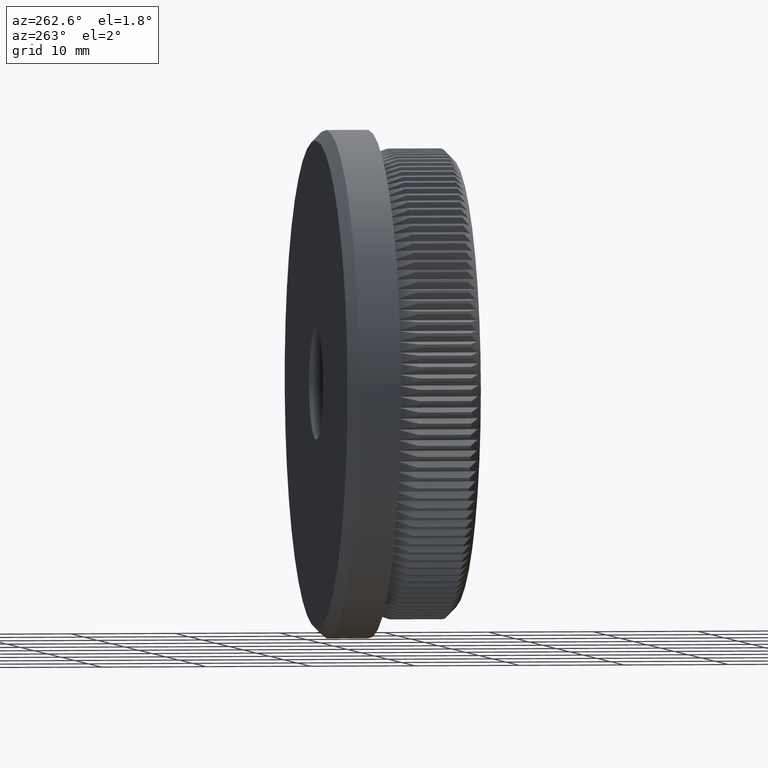
[diagram: clean part render]
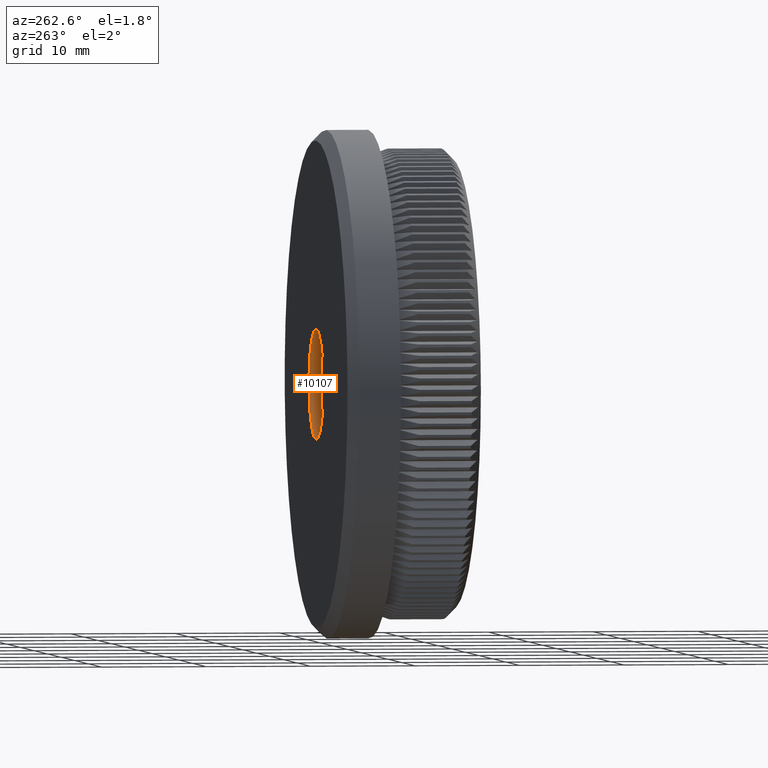
[diagram: same view with one face highlighted and labeled with its STEP entity id]
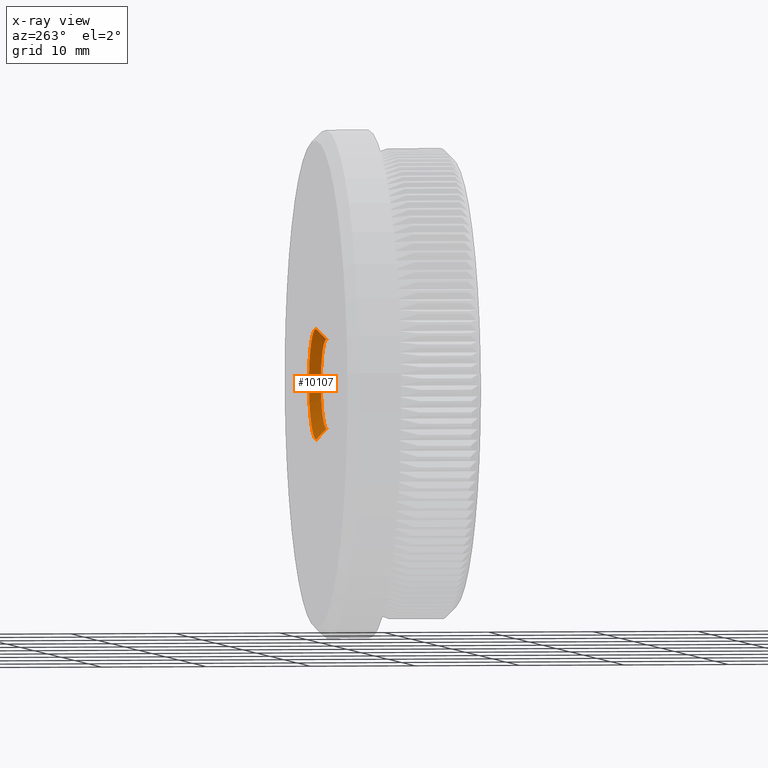
[diagram: x-ray of the same camera — body ghosted, the highlighted face saturated]
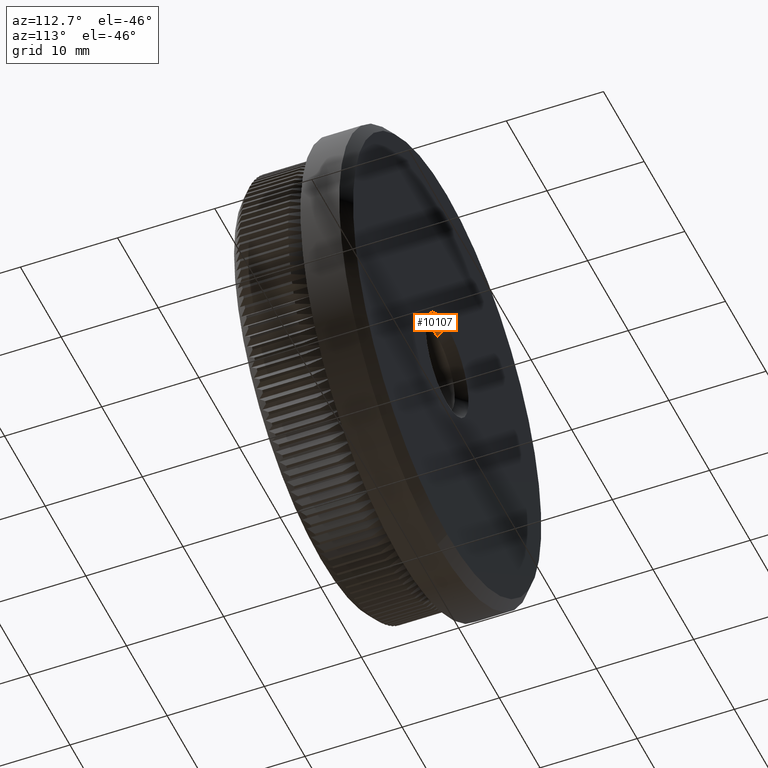
[diagram: same view with one face highlighted and labeled with its STEP entity id]
A machine part, auxiliary view. The second image highlights one B-rep face of the part: STEP entity #10107.
The next image is the same camera in x-ray: the body ghosted, the highlighted face saturated — about 1% of this face is hidden behind the body in this view.
A second angle (auxiliary view) of the same face is appended — the face is thin or edge-on in the first view.
In plain terms, the highlighted conical surface has half-angle 45 deg.
Its self-contained STEP definition (entity closure, byte-faithful):
#1467 = AXIS2_PLACEMENT_3D ( 'NONE', #30473, #5352, #23303 ) ;
#2279 = VERTEX_POINT ( 'NONE', #29812 ) ;
#2494 = EDGE_CURVE ( 'NONE', #17953, #16911, #25418, .T. ) ;
#3963 = DIRECTION ( 'NONE',  ( -0.0000000000000000000, -1.000000000000000000, -0.0000000000000000000 ) ) ;
#4587 = AXIS2_PLACEMENT_3D ( 'NONE', #20431, #20525, #25565 ) ;
#5352 = DIRECTION ( 'NONE',  ( -0.0000000000000000000, 1.000000000000000000, -0.0000000000000000000 ) ) ;
#5358 = CARTESIAN_POINT ( 'NONE',  ( 6.429395695523610100E-016, 13.00000000000000000, -5.250000000000004400 ) ) ;
#6341 = CARTESIAN_POINT ( 'NONE',  ( 0.0000000000000000000, 13.00000000000000000, 5.250000000000004400 ) ) ;
#7582 = LINE ( 'NONE', #29045, #19383 ) ;
#9754 = EDGE_LOOP ( 'NONE', ( #32307, #26061, #18581, #14532 ) ) ;
#10107 = ADVANCED_FACE ( 'NONE', ( #12930 ), #29120, .F. ) ;
#12371 = AXIS2_PLACEMENT_3D ( 'NONE', #24141, #3963, #29204 ) ;
#12930 = FACE_OUTER_BOUND ( 'NONE', #9754, .T. ) ;
#14430 = CIRCLE ( 'NONE', #12371, 5.250000000000004400 ) ;
#14532 = ORIENTED_EDGE ( 'NONE', *, *, #26199, .F. ) ;
#16750 = EDGE_CURVE ( 'NONE', #17953, #23921, #7582, .T. ) ;
#16911 = VERTEX_POINT ( 'NONE', #28800 ) ;
#17790 = EDGE_CURVE ( 'NONE', #16911, #2279, #24906, .T. ) ;
#17953 = VERTEX_POINT ( 'NONE', #25244 ) ;
#18581 = ORIENTED_EDGE ( 'NONE', *, *, #16750, .T. ) ;
#19383 = VECTOR ( 'NONE', #21886, 1000.000000000000000 ) ;
#20431 = CARTESIAN_POINT ( 'NONE',  ( 0.0000000000000000000, 13.00000000000000000, 0.0000000000000000000 ) ) ;
#20525 = DIRECTION ( 'NONE',  ( -0.0000000000000000000, 1.000000000000000000, -0.0000000000000000000 ) ) ;
#20591 = VECTOR ( 'NONE', #28041, 1000.000000000000000 ) ;
#21886 = DIRECTION ( 'NONE',  ( 0.0000000000000000000, 0.7071067811865515700, 0.7071067811865435800 ) ) ;
#23303 = DIRECTION ( 'NONE',  ( 0.0000000000000000000, 0.0000000000000000000, 1.000000000000000000 ) ) ;
#23921 = VERTEX_POINT ( 'NONE', #6341 ) ;
#24141 = CARTESIAN_POINT ( 'NONE',  ( 0.0000000000000000000, 13.00000000000000000, 0.0000000000000000000 ) ) ;
#24906 = LINE ( 'NONE', #5358, #20591 ) ;
#25244 = CARTESIAN_POINT ( 'NONE',  ( 5.204748896376248700E-016, 11.99999999999998000, 4.249999999999997300 ) ) ;
#25418 = CIRCLE ( 'NONE', #1467, 4.249999999999997300 ) ;
#25565 = DIRECTION ( 'NONE',  ( 0.0000000000000000000, 0.0000000000000000000, 1.000000000000000000 ) ) ;
#26061 = ORIENTED_EDGE ( 'NONE', *, *, #2494, .F. ) ;
#26199 = EDGE_CURVE ( 'NONE', #2279, #23921, #14430, .T. ) ;
#28041 = DIRECTION ( 'NONE',  ( 8.659560562354884800E-017, 0.7071067811865515700, -0.7071067811865435800 ) ) ;
#28800 = CARTESIAN_POINT ( 'NONE',  ( 0.0000000000000000000, 11.99999999999998000, -4.249999999999997300 ) ) ;
#29045 = CARTESIAN_POINT ( 'NONE',  ( 0.0000000000000000000, 13.00000000000000000, 5.250000000000004400 ) ) ;
#29120 = CONICAL_SURFACE ( 'NONE', #4587, 5.250000000000004400, 0.7853981633974426200 ) ;
#29204 = DIRECTION ( 'NONE',  ( 0.0000000000000000000, 0.0000000000000000000, 1.000000000000000000 ) ) ;
#29812 = CARTESIAN_POINT ( 'NONE',  ( 6.429395695523610100E-016, 13.00000000000000000, -5.250000000000004400 ) ) ;
#30473 = CARTESIAN_POINT ( 'NONE',  ( 0.0000000000000000000, 11.99999999999998000, 0.0000000000000000000 ) ) ;
#32307 = ORIENTED_EDGE ( 'NONE', *, *, #17790, .F. ) ;